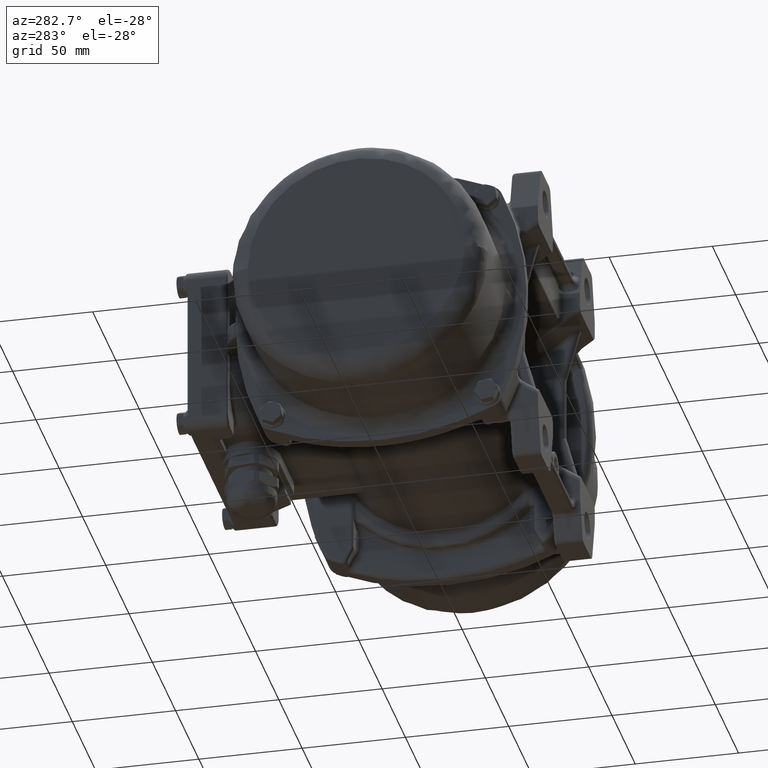
[diagram: clean part render]
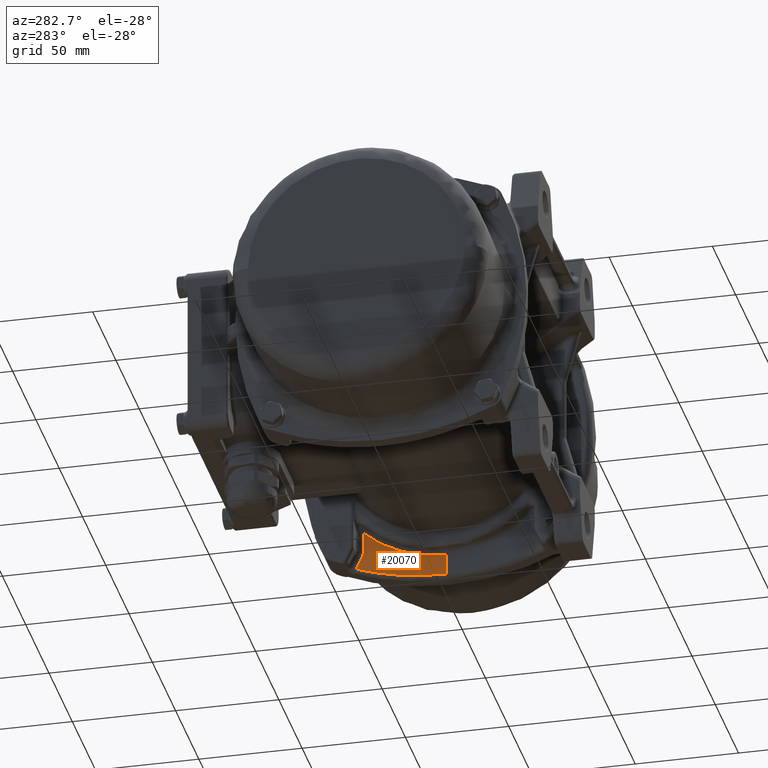
[diagram: same view with one face highlighted and labeled with its STEP entity id]
A machine part, auxiliary view. The second image highlights one B-rep face of the part: STEP entity #20070.
In plain terms, the highlighted conical surface has half-angle 87.5 deg.
Its self-contained STEP definition (entity closure, byte-faithful):
#129 = CARTESIAN_POINT ( 'NONE',  ( 67.09787213875355900, 14.93669438631750200, -67.71626910658444800 ) ) ;
#4441 = CARTESIAN_POINT ( 'NONE',  ( 67.24908396815115500, 35.46994310774780200, -63.57752696619975600 ) ) ;
#5768 = CARTESIAN_POINT ( 'NONE',  ( 67.07131328498250900, 7.488495086158661000, -68.42348381974626600 ) ) ;
#6025 = CARTESIAN_POINT ( 'NONE',  ( 67.08650555158045800, 12.04816646099558700, -68.01942030652506300 ) ) ;
#7352 = B_SPLINE_CURVE_WITH_KNOTS ( 'NONE', 3,
 ( #16499, #72245, #77889, #16773, #28819, #4441, #22927, #59922, #35716, #72513, #78677, #48076, #17578, #29088, #71975, #66084, #35180, #23192, #78140, #35449, #78405, #47806, #37028, #31173, #73829, #79481, #129, #67409, #36506, #6025, #36248, #79216, #36779, #5768, #43445, #60735 ),
 .UNSPECIFIED., .F., .F.,
 ( 4, 2, 2, 1, 1, 1, 2, 2, 2, 2, 1, 1, 1, 2, 2, 2, 2, 1, 1, 2, 2, 4 ),
 ( 0.0000000000000000000, 0.1249999999999920300, 0.1874999999999879300, 0.2187499999999854800, 0.2343749999999846200, 0.2421874999999841800, 0.2460937499999838500, 0.2499999999999835100, 0.3749999999999828500, 0.4374999999999825700, 0.4687499999999822900, 0.4843749999999821300, 0.4921874999999822400, 0.4960937499999824600, 0.4999999999999827900, 0.6249999999999869000, 0.6874999999999891200, 0.7187499999999903400, 0.7343749999999909000, 0.7421874999999912300, 0.7499999999999914500, 1.000000000000000000 ),
 .UNSPECIFIED. ) ;
#10083 = CARTESIAN_POINT ( 'NONE',  ( 66.99982835893720800, 40.55056006637114100, -53.45119127885249100 ) ) ;
#10182 = CARTESIAN_POINT ( 'NONE',  ( 67.06078876715193400, 41.02884362067934600, -54.83896608769507700 ) ) ;
#10491 = AXIS2_PLACEMENT_3D ( 'NONE', #12706, #13482, #43929 ) ;
#12706 = CARTESIAN_POINT ( 'NONE',  ( 67.35056392232346000, 0.0000000000000000000, 0.0000000000000000000 ) ) ;
#13482 = DIRECTION ( 'NONE',  ( 1.000000000000000000, 0.0000000000000000000, 0.0000000000000000000 ) ) ;
#13490 = ORIENTED_EDGE ( 'NONE', *, *, #48033, .T. ) ;
#13983 = CARTESIAN_POINT ( 'NONE',  ( 67.35056392232346000, 0.0000000000000000000, -75.12546833820157100 ) ) ;
#16499 = CARTESIAN_POINT ( 'NONE',  ( 67.34621187466173400, 43.94343522557861800, -60.80989789482814000 ) ) ;
#16605 = CARTESIAN_POINT ( 'NONE',  ( 67.15150791642372500, 41.95674194125685100, -56.73972325760202300 ) ) ;
#16645 = EDGE_CURVE ( 'NONE', #48773, #67462, #77787, .T. ) ;
#16773 = CARTESIAN_POINT ( 'NONE',  ( 67.27261676650684300, 37.70052083358970000, -62.91483804946411600 ) ) ;
#17578 = CARTESIAN_POINT ( 'NONE',  ( 67.20926801403473400, 31.41388794184348000, -64.68879962188397300 ) ) ;
#18189 = B_SPLINE_CURVE_WITH_KNOTS ( 'NONE', 3,
 ( #10182, #16605, #60832, #72886 ),
 .UNSPECIFIED., .F., .F.,
 ( 4, 4 ),
 ( 0.0000000000000000000, 1.000000000000000000 ),
 .UNSPECIFIED. ) ;
#20070 = ADVANCED_FACE ( 'NONE', ( #71711 ), #50565, .T. ) ;
#20095 = CARTESIAN_POINT ( 'NONE',  ( 67.06078876715193400, 41.02884362067934600, -54.83896608769507700 ) ) ;
#21694 = B_SPLINE_CURVE_WITH_KNOTS ( 'NONE', 3,
 ( #72501, #53214, #71449, #71968, #59151, #47527, #10083, #53745, #52942, #22642, #66072 ),
 .UNSPECIFIED., .F., .F.,
 ( 4, 2, 1, 2, 2, 4 ),
 ( 0.0000000000000000000, 0.2500000000000033900, 0.3750000000000084400, 0.4375000000000109400, 0.5000000000000134300, 1.000000000000000000 ),
 .UNSPECIFIED. ) ;
#22642 = CARTESIAN_POINT ( 'NONE',  ( 67.04113194810661000, 40.82781576864078900, -54.42709410924431500 ) ) ;
#22709 = CIRCLE ( 'NONE', #61850, 58.41276122526932100 ) ;
#22927 = CARTESIAN_POINT ( 'NONE',  ( 67.24224825417141500, 34.80065235854944200, -63.76922909791581200 ) ) ;
#23192 = CARTESIAN_POINT ( 'NONE',  ( 67.14917942055279800, 23.92165064383531000, -66.33401224014093600 ) ) ;
#23421 = CARTESIAN_POINT ( 'NONE',  ( 66.62087137121913800, 0.0000000000000000000, 0.0000000000000000000 ) ) ;
#25330 = CARTESIAN_POINT ( 'NONE',  ( 66.83196674698274400, 40.41653784136863700, -48.69683183344766100 ) ) ;
#27843 = VECTOR ( 'NONE', #50643, 1000.000000000000000 ) ;
#28819 = CARTESIAN_POINT ( 'NONE',  ( 67.26300442447393400, 36.80839363582414600, -63.18622833018003600 ) ) ;
#29088 = CARTESIAN_POINT ( 'NONE',  ( 67.19309705659715300, 29.59370033175791200, -65.13457369872413900 ) ) ;
#31173 = CARTESIAN_POINT ( 'NONE',  ( 67.12637273465088600, 20.48418995875913100, -66.95185535673400100 ) ) ;
#31242 = CARTESIAN_POINT ( 'NONE',  ( 67.34621187466173400, 43.94343522557861800, -60.80989789482814000 ) ) ;
#35180 = CARTESIAN_POINT ( 'NONE',  ( 67.15402823462183300, 24.60138396842905500, -66.20224923038674100 ) ) ;
#35449 = CARTESIAN_POINT ( 'NONE',  ( 67.14110753380377600, 22.73284606880716700, -66.55288101051053200 ) ) ;
#35716 = CARTESIAN_POINT ( 'NONE',  ( 67.23066707938822600, 33.62914706530298800, -64.09272428598477200 ) ) ;
#36248 = CARTESIAN_POINT ( 'NONE',  ( 67.08530384320188500, 11.70147380565862800, -68.05140177936286200 ) ) ;
#36506 = CARTESIAN_POINT ( 'NONE',  ( 67.08943247876847200, 12.85703971008247300, -67.94147151563491600 ) ) ;
#36779 = CARTESIAN_POINT ( 'NONE',  ( 67.08413096008462200, 11.35639643624169000, -68.08260639930104200 ) ) ;
#37028 = CARTESIAN_POINT ( 'NONE',  ( 67.13887451586067800, 22.39459596406641900, -66.61336131307457700 ) ) ;
#37546 = CARTESIAN_POINT ( 'NONE',  ( 66.62087058006061100, 40.40947341108131500, -42.17967681993584300 ) ) ;
#43445 = CARTESIAN_POINT ( 'NONE',  ( 67.06509865463003500, 3.748522474545913100, -68.58723877473040900 ) ) ;
#43929 = DIRECTION ( 'NONE',  ( 0.0000000000000000000, 0.0000000000000000000, -1.000000000000000000 ) ) ;
#44120 = B_SPLINE_CURVE_WITH_KNOTS ( 'NONE', 3,
 ( #37546, #68675, #25330, #50425 ),
 .UNSPECIFIED., .F., .F.,
 ( 4, 4 ),
 ( 0.0000000000000000000, 1.000000000000000000 ),
 .UNSPECIFIED. ) ;
#44926 = ORIENTED_EDGE ( 'NONE', *, *, #59028, .T. ) ;
#46992 = CARTESIAN_POINT ( 'NONE',  ( 66.62087137121913800, 0.0000000000000000000, -58.41276122526946300 ) ) ;
#47527 = CARTESIAN_POINT ( 'NONE',  ( 66.99532529643643400, 40.52781851655998900, -53.33896253996716300 ) ) ;
#47806 = CARTESIAN_POINT ( 'NONE',  ( 67.13923769988818400, 22.44988156281397800, -66.60352647370032700 ) ) ;
#48033 = EDGE_CURVE ( 'NONE', #67917, #69593, #21694, .T. ) ;
#48076 = CARTESIAN_POINT ( 'NONE',  ( 67.22742967441118400, 33.29561510001273200, -64.18295478467095400 ) ) ;
#48773 = VERTEX_POINT ( 'NONE', #46992 ) ;
#50425 = CARTESIAN_POINT ( 'NONE',  ( 66.95334655902004800, 40.41989332548312300, -52.21004431693511800 ) ) ;
#50565 = CONICAL_SURFACE ( 'NONE', #10491, 75.12546833820157100, 1.527163095495043900 ) ;
#50643 = DIRECTION ( 'NONE',  ( 0.04361938736533046300, 0.0000000000000000000, -0.9990482215818580200 ) ) ;
#51023 = CARTESIAN_POINT ( 'NONE',  ( 66.95334655902004800, 40.41989332548312300, -52.21004431693511800 ) ) ;
#52942 = CARTESIAN_POINT ( 'NONE',  ( 67.02233359395187100, 40.67763726947269700, -54.00159635916909900 ) ) ;
#53214 = CARTESIAN_POINT ( 'NONE',  ( 66.96119005670706800, 40.42011897099797600, -52.43705937821019300 ) ) ;
#53496 = EDGE_CURVE ( 'NONE', #67183, #67462, #7352, .T. ) ;
#53591 = EDGE_CURVE ( 'NONE', #57342, #67917, #44120, .T. ) ;
#53745 = CARTESIAN_POINT ( 'NONE',  ( 67.00215121859277200, 40.56304048065785400, -53.50849629840625000 ) ) ;
#55334 = EDGE_CURVE ( 'NONE', #69593, #67183, #18189, .T. ) ;
#57342 = VERTEX_POINT ( 'NONE', #75093 ) ;
#57387 = ORIENTED_EDGE ( 'NONE', *, *, #16645, .F. ) ;
#58335 = CARTESIAN_POINT ( 'NONE',  ( 67.06509865468194700, -3.132800867404279000E-015, -68.58723877663371100 ) ) ;
#59028 = EDGE_CURVE ( 'NONE', #48773, #57342, #22709, .T. ) ;
#59151 = CARTESIAN_POINT ( 'NONE',  ( 66.98863298599108900, 40.49617377127120900, -53.17048486338401100 ) ) ;
#59922 = CARTESIAN_POINT ( 'NONE',  ( 67.23449115434630100, 34.01967427293163100, -63.98603008694940500 ) ) ;
#60413 = DIRECTION ( 'NONE',  ( 0.0000000000000000000, 0.0000000000000000000, 1.000000000000000000 ) ) ;
#60735 = CARTESIAN_POINT ( 'NONE',  ( 67.06509865468194700, -3.132800867404279000E-015, -68.58723877663371100 ) ) ;
#60832 = CARTESIAN_POINT ( 'NONE',  ( 67.24664894704668000, 42.92827192067649400, -58.73003092516647400 ) ) ;
#61850 = AXIS2_PLACEMENT_3D ( 'NONE', #23421, #72204, #60413 ) ;
#63161 = ORIENTED_EDGE ( 'NONE', *, *, #53591, .T. ) ;
#66072 = CARTESIAN_POINT ( 'NONE',  ( 67.06078876715193400, 41.02884362067934600, -54.83896608769507700 ) ) ;
#66084 = CARTESIAN_POINT ( 'NONE',  ( 67.16399592830882200, 25.96139818384240500, -65.93098017270699500 ) ) ;
#67183 = VERTEX_POINT ( 'NONE', #31242 ) ;
#67409 = CARTESIAN_POINT ( 'NONE',  ( 67.09215202945199500, 13.55026653154383400, -67.86895028090920300 ) ) ;
#67462 = VERTEX_POINT ( 'NONE', #58335 ) ;
#67917 = VERTEX_POINT ( 'NONE', #51023 ) ;
#68675 = CARTESIAN_POINT ( 'NONE',  ( 66.72114168313659400, 40.41302570298984200, -45.35668820385657100 ) ) ;
#69593 = VERTEX_POINT ( 'NONE', #20095 ) ;
#70875 = ORIENTED_EDGE ( 'NONE', *, *, #55334, .T. ) ;
#71449 = CARTESIAN_POINT ( 'NONE',  ( 66.96936573763089500, 40.43305319068176100, -52.66330744423841300 ) ) ;
#71711 = FACE_OUTER_BOUND ( 'NONE', #78411, .T. ) ;
#71968 = CARTESIAN_POINT ( 'NONE',  ( 66.98212752546325500, 40.47189348382929800, -53.00160555369576800 ) ) ;
#71975 = CARTESIAN_POINT ( 'NONE',  ( 67.17100114483199000, 26.86880608292880600, -65.73981231892254600 ) ) ;
#72204 = DIRECTION ( 'NONE',  ( 1.000000000000000000, 0.0000000000000000000, 0.0000000000000000000 ) ) ;
#72245 = CARTESIAN_POINT ( 'NONE',  ( 67.32366681703155100, 42.16013374528767300, -61.46149524850567800 ) ) ;
#72501 = CARTESIAN_POINT ( 'NONE',  ( 66.95334655902004800, 40.41989332548312300, -52.21004431693511800 ) ) ;
#72513 = CARTESIAN_POINT ( 'NONE',  ( 67.22903986332498500, 33.46176970556694400, -64.13808543021355000 ) ) ;
#72886 = CARTESIAN_POINT ( 'NONE',  ( 67.34621187466173400, 43.94343522557861800, -60.80989789482814000 ) ) ;
#73829 = CARTESIAN_POINT ( 'NONE',  ( 67.11574850428023400, 18.63435596259082400, -67.23751084099133400 ) ) ;
#75093 = CARTESIAN_POINT ( 'NONE',  ( 66.62087058006061100, 40.40947341108131500, -42.17967681993584300 ) ) ;
#77787 = LINE ( 'NONE', #13983, #27843 ) ;
#77889 = CARTESIAN_POINT ( 'NONE',  ( 67.30244990605905300, 40.37655296537806000, -62.06853109193327400 ) ) ;
#77980 = ORIENTED_EDGE ( 'NONE', *, *, #53496, .T. ) ;
#78140 = CARTESIAN_POINT ( 'NONE',  ( 67.14375877816090100, 23.12904927177594800, -66.48103565103157600 ) ) ;
#78405 = CARTESIAN_POINT ( 'NONE',  ( 67.13998394554471400, 22.56306474811524900, -66.58331571701282300 ) ) ;
#78411 = EDGE_LOOP ( 'NONE', ( #57387, #44926, #63161, #13490, #70875, #77980 ) ) ;
#78677 = CARTESIAN_POINT ( 'NONE',  ( 67.22795764666165000, 33.35018285451968700, -64.16824517088926400 ) ) ;
#79216 = CARTESIAN_POINT ( 'NONE',  ( 67.08451441294676000, 11.47033705412711100, -68.07240624395497300 ) ) ;
#79481 = CARTESIAN_POINT ( 'NONE',  ( 67.10206022220066300, 15.86094624766668000, -67.60429971562807300 ) ) ;